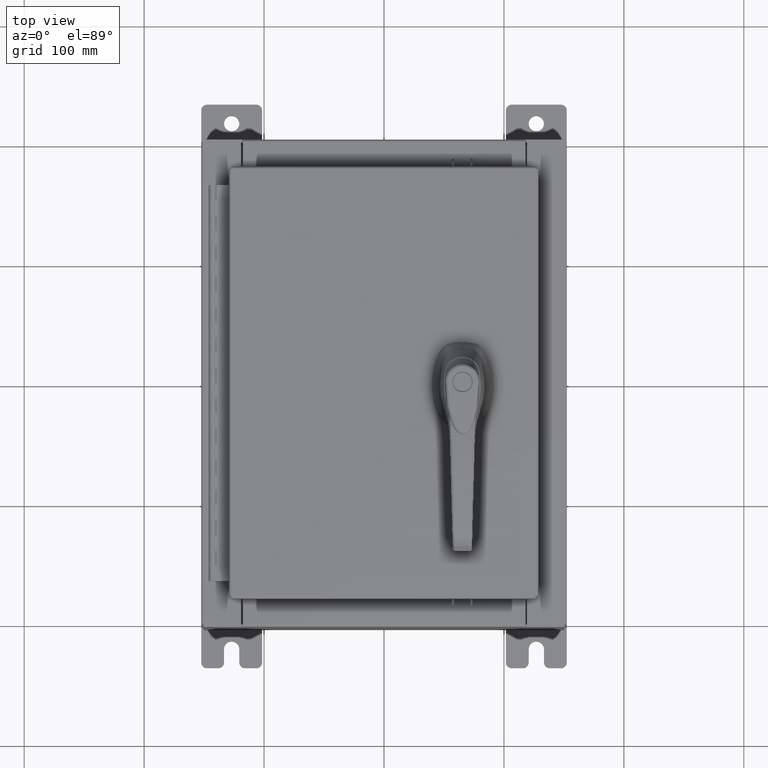
[diagram: clean part render]
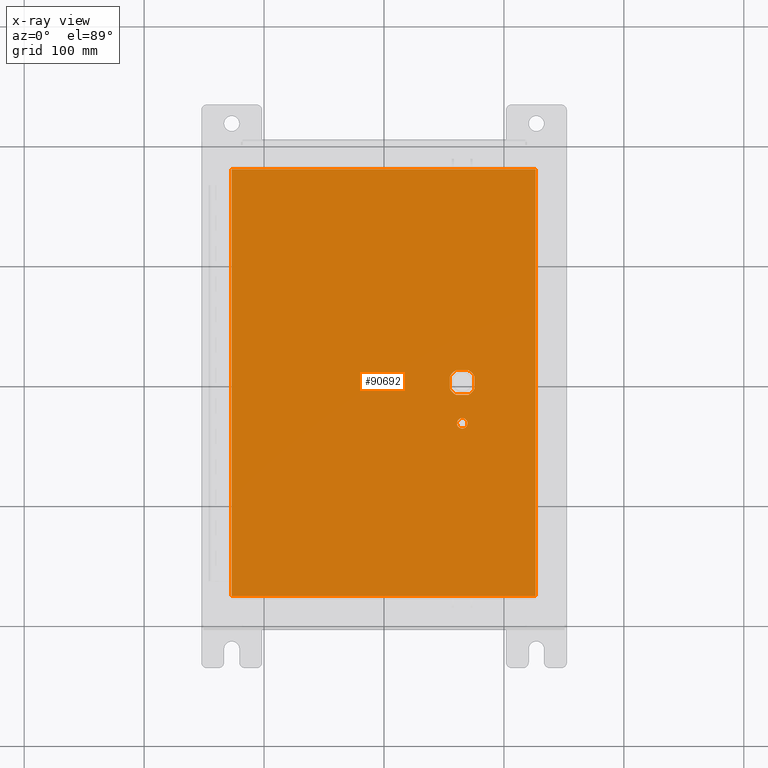
[diagram: x-ray — body ghosted, one internal face saturated and labeled with its STEP entity id]
A machine part, top view, then the same camera in x-ray: the body is ghosted and one INTERNAL B-rep face — a face not visible from any outside direction — is saturated and labeled: STEP entity #90692.
In plain terms, the highlighted planar face has unit normal (0, 0, -1).
Its self-contained STEP definition (entity closure, byte-faithful):
#289 = EDGE_CURVE ( 'NONE', #101280, #69163, #53806, .T. ) ;
#1096 = ORIENTED_EDGE ( 'NONE', *, *, #50985, .T. ) ;
#2232 = ORIENTED_EDGE ( 'NONE', *, *, #92213, .F. ) ;
#2537 = EDGE_CURVE ( 'NONE', #7902, #95326, #2799, .T. ) ;
#2698 = DIRECTION ( 'NONE',  ( -0.0000000000000000000, -0.0000000000000000000, 1.000000000000000000 ) ) ;
#2799 = LINE ( 'NONE', #54241, #66220 ) ;
#2989 = CARTESIAN_POINT ( 'NONE',  ( 2.980999999999924400, 0.2002273707563080300, -0.07470000000000003000 ) ) ;
#3039 = CARTESIAN_POINT ( 'NONE',  ( 2.577999999999998500, 0.0000000000000000000, -0.07470000000000003000 ) ) ;
#3075 = DIRECTION ( 'NONE',  ( -1.000000000000000000, -0.0000000000000000000, -0.0000000000000000000 ) ) ;
#5017 = ORIENTED_EDGE ( 'NONE', *, *, #23625, .T. ) ;
#5229 = ORIENTED_EDGE ( 'NONE', *, *, #65956, .T. ) ;
#5854 = CARTESIAN_POINT ( 'NONE',  ( 2.377772629243688900, -0.4029999999999250300, -0.07470000000000003000 ) ) ;
#7119 = EDGE_CURVE ( 'NONE', #69163, #95326, #15297, .T. ) ;
#7902 = VERTEX_POINT ( 'NONE', #2989 ) ;
#8878 = CIRCLE ( 'NONE', #19279, 0.4499999999999156900 ) ;
#9777 = EDGE_CURVE ( 'NONE', #46929, #16321, #27946, .T. ) ;
#10064 = AXIS2_PLACEMENT_3D ( 'NONE', #18550, #76422, #26861 ) ;
#10285 = LINE ( 'NONE', #28458, #54352 ) ;
#10344 = AXIS2_PLACEMENT_3D ( 'NONE', #82341, #49342, #107293 ) ;
#10614 = DIRECTION ( 'NONE',  ( -0.0000000000000000000, -0.0000000000000000000, 1.000000000000000000 ) ) ;
#11364 = DIRECTION ( 'NONE',  ( -1.000000000000000000, 0.0000000000000000000, 0.0000000000000000000 ) ) ;
#14055 = VERTEX_POINT ( 'NONE', #29218 ) ;
#15082 = CARTESIAN_POINT ( 'NONE',  ( 2.175000000000072700, 0.2002273707563080300, -0.07470000000000003000 ) ) ;
#15297 = CIRCLE ( 'NONE', #63279, 0.4499999999999156900 ) ;
#16321 = VERTEX_POINT ( 'NONE', #58499 ) ;
#16374 = CARTESIAN_POINT ( 'NONE',  ( 2.577999999999998500, -1.338000000000000100, -0.07470000000000003000 ) ) ;
#16674 = DIRECTION ( 'NONE',  ( 1.000000000000000000, -0.0000000000000000000, -0.0000000000000000000 ) ) ;
#17105 = CARTESIAN_POINT ( 'NONE',  ( -4.990300000000000400, 7.006300000000000400, -0.07470000000000019700 ) ) ;
#18316 = EDGE_LOOP ( 'NONE', ( #76119, #20983, #5229, #104986, #38418, #1096, #5017, #26603 ) ) ;
#18550 = CARTESIAN_POINT ( 'NONE',  ( 2.577999999999998500, 0.0000000000000000000, -0.07470000000000003000 ) ) ;
#18960 = CARTESIAN_POINT ( 'NONE',  ( 4.990299999999998600, -7.006300000000000400, -0.07470000000000000300 ) ) ;
#19279 = AXIS2_PLACEMENT_3D ( 'NONE', #95967, #46383, #104351 ) ;
#20983 = ORIENTED_EDGE ( 'NONE', *, *, #2537, .F. ) ;
#20986 = DIRECTION ( 'NONE',  ( 1.364372904336406500E-015, -1.000000000000000000, 0.0000000000000000000 ) ) ;
#21576 = ORIENTED_EDGE ( 'NONE', *, *, #30433, .T. ) ;
#23625 = EDGE_CURVE ( 'NONE', #38179, #101280, #88099, .T. ) ;
#24666 = DIRECTION ( 'NONE',  ( -1.000000000000000000, 0.0000000000000000000, 0.0000000000000000000 ) ) ;
#26007 = EDGE_CURVE ( 'NONE', #60611, #102398, #64496, .T. ) ;
#26603 = ORIENTED_EDGE ( 'NONE', *, *, #289, .T. ) ;
#26861 = DIRECTION ( 'NONE',  ( -1.000000000000000000, 0.0000000000000000000, 0.0000000000000000000 ) ) ;
#27946 = CIRCLE ( 'NONE', #75114, 0.1715000000000000700 ) ;
#28317 = CARTESIAN_POINT ( 'NONE',  ( 2.980999999999924400, -0.2002273707563078100, -0.07470000000000003000 ) ) ;
#28458 = CARTESIAN_POINT ( 'NONE',  ( 2.175000000000072700, 0.0000000000000000000, -0.07470000000000003000 ) ) ;
#29218 = CARTESIAN_POINT ( 'NONE',  ( -4.990300000000000400, 7.006299999999998600, -0.07470000000000000300 ) ) ;
#30433 = EDGE_CURVE ( 'NONE', #16321, #46929, #64826, .T. ) ;
#30465 = EDGE_CURVE ( 'NONE', #87571, #14055, #106311, .T. ) ;
#35988 = CARTESIAN_POINT ( 'NONE',  ( 4.990299999999998600, 7.006300000000000400, -0.07470000000000021100 ) ) ;
#36431 = VERTEX_POINT ( 'NONE', #15082 ) ;
#37219 = AXIS2_PLACEMENT_3D ( 'NONE', #60208, #10614, #68543 ) ;
#38179 = VERTEX_POINT ( 'NONE', #66026 ) ;
#38418 = ORIENTED_EDGE ( 'NONE', *, *, #99086, .T. ) ;
#39861 = VECTOR ( 'NONE', #50895, 39.37007874015748100 ) ;
#42781 = VECTOR ( 'NONE', #3075, 39.37007874015748100 ) ;
#45588 = EDGE_LOOP ( 'NONE', ( #21576, #59770 ) ) ;
#46317 = CARTESIAN_POINT ( 'NONE',  ( -4.990299999999999500, -7.006300000000000400, -0.07470000000000000300 ) ) ;
#46383 = DIRECTION ( 'NONE',  ( -0.0000000000000000000, -0.0000000000000000000, 1.000000000000000000 ) ) ;
#46929 = VERTEX_POINT ( 'NONE', #55806 ) ;
#47432 = CARTESIAN_POINT ( 'NONE',  ( 2.778227370756308100, -0.4029999999999252000, -0.07470000000000003000 ) ) ;
#49019 = LINE ( 'NONE', #17105, #87913 ) ;
#49342 = DIRECTION ( 'NONE',  ( 0.0000000000000000000, 0.0000000000000000000, -1.000000000000000000 ) ) ;
#50515 = EDGE_LOOP ( 'NONE', ( #92699, #2232, #62521, #92761 ) ) ;
#50562 = VERTEX_POINT ( 'NONE', #46317 ) ;
#50895 = DIRECTION ( 'NONE',  ( -1.000000000000000000, 0.0000000000000000000, 0.0000000000000000000 ) ) ;
#50985 = EDGE_CURVE ( 'NONE', #36431, #38179, #10285, .T. ) ;
#52066 = CARTESIAN_POINT ( 'NONE',  ( 4.990299999999997700, 7.006300000000000400, -0.07470000000000000300 ) ) ;
#52254 = CARTESIAN_POINT ( 'NONE',  ( 2.577999999999998500, -1.338000000000000100, -0.07470000000000003000 ) ) ;
#52266 = EDGE_CURVE ( 'NONE', #14055, #50562, #49019, .T. ) ;
#53159 = DIRECTION ( 'NONE',  ( 1.000000000000000000, 0.0000000000000000000, 0.0000000000000000000 ) ) ;
#53179 = FACE_BOUND ( 'NONE', #18316, .T. ) ;
#53806 = LINE ( 'NONE', #69817, #95242 ) ;
#54241 = CARTESIAN_POINT ( 'NONE',  ( 2.980999999999924400, 4.067195627826724000E-015, -0.07470000000000003000 ) ) ;
#54352 = VECTOR ( 'NONE', #78062, 39.37007874015748100 ) ;
#55806 = CARTESIAN_POINT ( 'NONE',  ( 2.406499999999998500, -1.338000000000000100, -0.07470000000000003000 ) ) ;
#57314 = PLANE ( 'NONE',  #10344 ) ;
#58499 = CARTESIAN_POINT ( 'NONE',  ( 2.749499999999998500, -1.338000000000000100, -0.07470000000000003000 ) ) ;
#59770 = ORIENTED_EDGE ( 'NONE', *, *, #9777, .T. ) ;
#60208 = CARTESIAN_POINT ( 'NONE',  ( 2.577999999999998500, 0.0000000000000000000, -0.07470000000000003000 ) ) ;
#60609 = DIRECTION ( 'NONE',  ( -1.000000000000000000, 0.0000000000000000000, 0.0000000000000000000 ) ) ;
#60611 = VERTEX_POINT ( 'NONE', #92106 ) ;
#60915 = DIRECTION ( 'NONE',  ( -0.0000000000000000000, -0.0000000000000000000, 1.000000000000000000 ) ) ;
#62521 = ORIENTED_EDGE ( 'NONE', *, *, #52266, .F. ) ;
#63250 = AXIS2_PLACEMENT_3D ( 'NONE', #52254, #2698, #60609 ) ;
#63279 = AXIS2_PLACEMENT_3D ( 'NONE', #3039, #60915, #11364 ) ;
#64496 = LINE ( 'NONE', #67942, #39861 ) ;
#64826 = CIRCLE ( 'NONE', #63250, 0.1715000000000000700 ) ;
#65823 = DIRECTION ( 'NONE',  ( 0.0000000000000000000, 1.000000000000000000, 0.0000000000000000000 ) ) ;
#65956 = EDGE_CURVE ( 'NONE', #7902, #60611, #8878, .T. ) ;
#66026 = CARTESIAN_POINT ( 'NONE',  ( 2.175000000000072700, -0.2002273707563079800, -0.07470000000000003000 ) ) ;
#66220 = VECTOR ( 'NONE', #20986, 39.37007874015748100 ) ;
#66679 = CARTESIAN_POINT ( 'NONE',  ( 2.377772629243688900, 0.4029999999999252000, -0.07470000000000003000 ) ) ;
#67942 = CARTESIAN_POINT ( 'NONE',  ( 0.0000000000000000000, 0.4029999999999252000, -0.07470000000000003000 ) ) ;
#68543 = DIRECTION ( 'NONE',  ( -1.000000000000000000, 8.881784197001256300E-016, 0.0000000000000000000 ) ) ;
#69163 = VERTEX_POINT ( 'NONE', #47432 ) ;
#69817 = CARTESIAN_POINT ( 'NONE',  ( 0.0000000000000000000, -0.4029999999999252000, -0.07470000000000003000 ) ) ;
#70184 = CIRCLE ( 'NONE', #10064, 0.4499999999999156900 ) ;
#74249 = DIRECTION ( 'NONE',  ( -0.0000000000000000000, -0.0000000000000000000, 1.000000000000000000 ) ) ;
#75114 = AXIS2_PLACEMENT_3D ( 'NONE', #16374, #74249, #24666 ) ;
#75159 = FACE_BOUND ( 'NONE', #45588, .T. ) ;
#76119 = ORIENTED_EDGE ( 'NONE', *, *, #7119, .T. ) ;
#76422 = DIRECTION ( 'NONE',  ( -0.0000000000000000000, -0.0000000000000000000, 1.000000000000000000 ) ) ;
#78062 = DIRECTION ( 'NONE',  ( 0.0000000000000000000, -1.000000000000000000, 0.0000000000000000000 ) ) ;
#78978 = LINE ( 'NONE', #81087, #98341 ) ;
#81087 = CARTESIAN_POINT ( 'NONE',  ( -4.990300000000000400, -7.006300000000000400, -0.07470000000000021100 ) ) ;
#82341 = CARTESIAN_POINT ( 'NONE',  ( 0.0000000000000000000, 0.0000000000000000000, -0.07470000000000000300 ) ) ;
#83239 = VECTOR ( 'NONE', #65823, 39.37007874015748100 ) ;
#87571 = VERTEX_POINT ( 'NONE', #52066 ) ;
#87913 = VECTOR ( 'NONE', #91637, 39.37007874015748100 ) ;
#88099 = CIRCLE ( 'NONE', #37219, 0.4499999999999156900 ) ;
#90692 = ADVANCED_FACE ( 'NONE', ( #75159, #99784, #53179 ), #57314, .T. ) ;
#91637 = DIRECTION ( 'NONE',  ( 0.0000000000000000000, -1.000000000000000000, 0.0000000000000000000 ) ) ;
#92106 = CARTESIAN_POINT ( 'NONE',  ( 2.778227370756308100, 0.4029999999999250300, -0.07470000000000003000 ) ) ;
#92213 = EDGE_CURVE ( 'NONE', #50562, #104204, #78978, .T. ) ;
#92699 = ORIENTED_EDGE ( 'NONE', *, *, #97951, .F. ) ;
#92761 = ORIENTED_EDGE ( 'NONE', *, *, #30465, .F. ) ;
#95242 = VECTOR ( 'NONE', #53159, 39.37007874015748100 ) ;
#95326 = VERTEX_POINT ( 'NONE', #28317 ) ;
#95967 = CARTESIAN_POINT ( 'NONE',  ( 2.577999999999998500, 0.0000000000000000000, -0.07470000000000003000 ) ) ;
#97951 = EDGE_CURVE ( 'NONE', #104204, #87571, #105289, .T. ) ;
#98341 = VECTOR ( 'NONE', #16674, 39.37007874015748100 ) ;
#99086 = EDGE_CURVE ( 'NONE', #102398, #36431, #70184, .T. ) ;
#99784 = FACE_OUTER_BOUND ( 'NONE', #50515, .T. ) ;
#100925 = CARTESIAN_POINT ( 'NONE',  ( 4.990299999999998600, -7.006300000000000400, -0.07469999999999966900 ) ) ;
#101280 = VERTEX_POINT ( 'NONE', #5854 ) ;
#102398 = VERTEX_POINT ( 'NONE', #66679 ) ;
#104204 = VERTEX_POINT ( 'NONE', #18960 ) ;
#104351 = DIRECTION ( 'NONE',  ( -1.000000000000000000, 0.0000000000000000000, 0.0000000000000000000 ) ) ;
#104986 = ORIENTED_EDGE ( 'NONE', *, *, #26007, .T. ) ;
#105289 = LINE ( 'NONE', #100925, #83239 ) ;
#106311 = LINE ( 'NONE', #35988, #42781 ) ;
#107293 = DIRECTION ( 'NONE',  ( -1.000000000000000000, 0.0000000000000000000, -0.0000000000000000000 ) ) ;